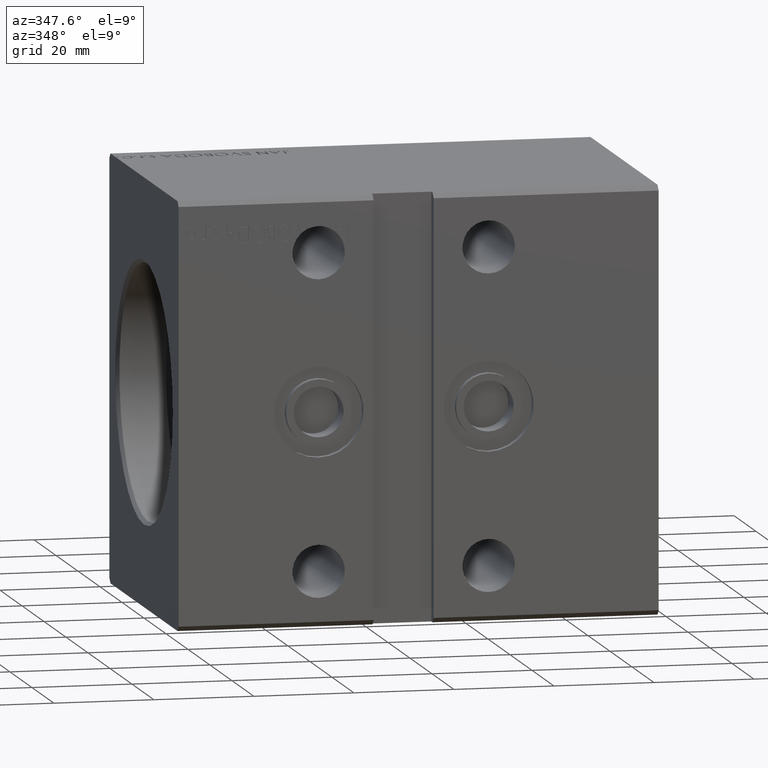
[diagram: clean part render]
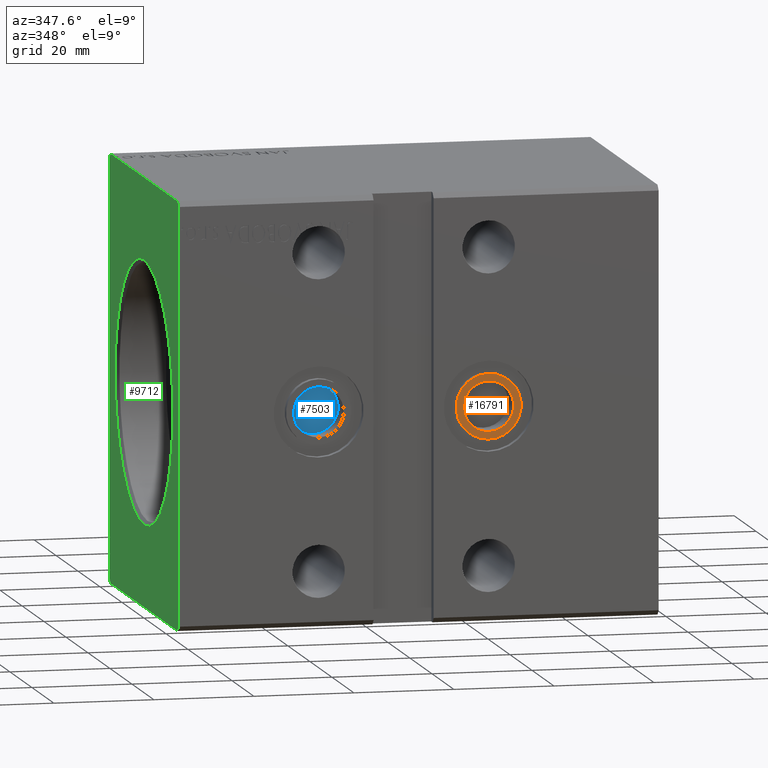
[diagram: same view with three faces highlighted in distinct colors, each labeled with its STEP entity id]
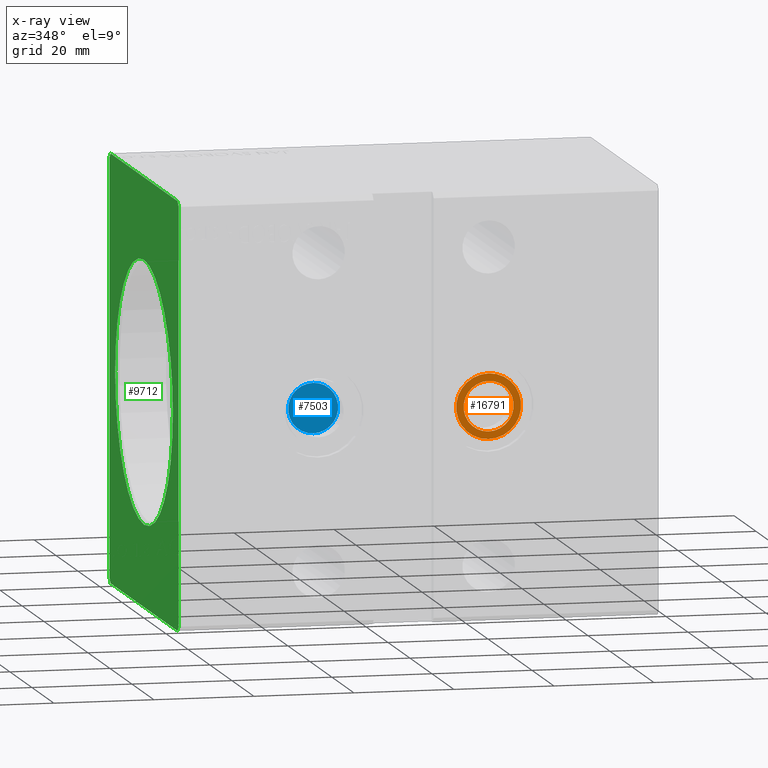
[diagram: x-ray of the same camera — body ghosted, the three highlighted faces saturated]
A machine part, auxiliary view with three faces highlighted in distinct colors.
The next image is the same camera in x-ray (body ghosted, the three faces saturated) — at least one of them is partly hidden behind the body in this view.
Their STEP definitions:

[orange] entity #16791 — the highlighted planar face has unit normal (-0, 1, 0).
#1786 = AXIS2_PLACEMENT_3D ( 'NONE', #10950, #23480, #11155 ) ;
#2209 = FACE_OUTER_BOUND ( 'NONE', #11065, .T. ) ;
#2315 = CARTESIAN_POINT ( 'NONE',  ( 62.00000000000000711, -31.50000000000000000, -2.775094786806227030E-15 ) ) ;
#2812 = CARTESIAN_POINT ( 'NONE',  ( 96.00000000000000000, -31.50000000000000000, 41.49999999999999289 ) ) ;
#2867 = DIRECTION ( 'NONE',  ( 0.000000000000000000, -1.000000000000000000, -5.507058653894625853E-17 ) ) ;
#2989 = EDGE_CURVE ( 'NONE', #10899, #4080, #35554, .T. ) ;
#4080 = VERTEX_POINT ( 'NONE', #13755 ) ;
#7200 = CARTESIAN_POINT ( 'NONE',  ( 62.00000000000000711, -31.50000000000000000, -6.499999999999997335 ) ) ;
#8482 = EDGE_LOOP ( 'NONE', ( #21313, #29757 ) ) ;
#9621 = VERTEX_POINT ( 'NONE', #38488 ) ;
#10654 = VERTEX_POINT ( 'NONE', #7200 ) ;
#10793 = AXIS2_PLACEMENT_3D ( 'NONE', #2315, #21028, #21435 ) ;
#10899 = VERTEX_POINT ( 'NONE', #21750 ) ;
#10950 = CARTESIAN_POINT ( 'NONE',  ( 62.00000000000000711, -31.50000000000000000, -2.775094786806227030E-15 ) ) ;
#11065 = EDGE_LOOP ( 'NONE', ( #23673, #36223 ) ) ;
#11155 = DIRECTION ( 'NONE',  ( 0.000000000000000000, 0.000000000000000000, -1.000000000000000000 ) ) ;
#12232 = CIRCLE ( 'NONE', #22082, 4.999999999999997335 ) ;
#13755 = CARTESIAN_POINT ( 'NONE',  ( 62.00000000000000711, -31.50000000000000000, -5.000000000000000000 ) ) ;
#14764 = FACE_BOUND ( 'NONE', #8482, .T. ) ;
#16042 = CIRCLE ( 'NONE', #10793, 6.499999999999994671 ) ;
#16791 = ADVANCED_FACE ( 'NONE', ( #14764, #2209 ), #27910, .F. ) ;
#19147 = AXIS2_PLACEMENT_3D ( 'NONE', #24262, #2867, #28164 ) ;
#20926 = DIRECTION ( 'NONE',  ( 0.000000000000000000, -0.000000000000000000, 1.000000000000000000 ) ) ;
#21028 = DIRECTION ( 'NONE',  ( -0.000000000000000000, 1.000000000000000000, -0.000000000000000000 ) ) ;
#21313 = ORIENTED_EDGE ( 'NONE', *, *, #32090, .F. ) ;
#21435 = DIRECTION ( 'NONE',  ( 0.000000000000000000, 0.000000000000000000, -1.000000000000000000 ) ) ;
#21750 = CARTESIAN_POINT ( 'NONE',  ( 62.00000000000000711, -31.50000000000000000, 4.999999999999994671 ) ) ;
#22082 = AXIS2_PLACEMENT_3D ( 'NONE', #27485, #40024, #36122 ) ;
#23480 = DIRECTION ( 'NONE',  ( -0.000000000000000000, 1.000000000000000000, -0.000000000000000000 ) ) ;
#23673 = ORIENTED_EDGE ( 'NONE', *, *, #25347, .F. ) ;
#24262 = CARTESIAN_POINT ( 'NONE',  ( 62.00000000000000711, -31.50000000000000000, -2.775094786806226635E-15 ) ) ;
#25347 = EDGE_CURVE ( 'NONE', #10654, #9621, #16042, .T. ) ;
#25593 = AXIS2_PLACEMENT_3D ( 'NONE', #2812, #30367, #20926 ) ;
#27485 = CARTESIAN_POINT ( 'NONE',  ( 62.00000000000000711, -31.50000000000000000, -2.775094786806226635E-15 ) ) ;
#27910 = PLANE ( 'NONE',  #25593 ) ;
#28164 = DIRECTION ( 'NONE',  ( 0.000000000000000000, 0.000000000000000000, -1.000000000000000000 ) ) ;
#28690 = CIRCLE ( 'NONE', #1786, 6.499999999999994671 ) ;
#29757 = ORIENTED_EDGE ( 'NONE', *, *, #2989, .F. ) ;
#30367 = DIRECTION ( 'NONE',  ( -0.000000000000000000, 1.000000000000000000, 0.000000000000000000 ) ) ;
#32090 = EDGE_CURVE ( 'NONE', #4080, #10899, #12232, .T. ) ;
#34210 = EDGE_CURVE ( 'NONE', #9621, #10654, #28690, .T. ) ;
#35554 = CIRCLE ( 'NONE', #19147, 4.999999999999997335 ) ;
#36122 = DIRECTION ( 'NONE',  ( 0.000000000000000000, 0.000000000000000000, -1.000000000000000000 ) ) ;
#36223 = ORIENTED_EDGE ( 'NONE', *, *, #34210, .F. ) ;
#38488 = CARTESIAN_POINT ( 'NONE',  ( 62.00000000000000711, -31.50000000000000000, 6.499999999999992006 ) ) ;
#40024 = DIRECTION ( 'NONE',  ( 0.000000000000000000, -1.000000000000000000, -5.507058653894625853E-17 ) ) ;

[blue] entity #7503 — the highlighted planar face has unit normal (0, -1, -0).
#93 = FACE_OUTER_BOUND ( 'NONE', #5472, .T. ) ;
#1853 = VERTEX_POINT ( 'NONE', #25103 ) ;
#2794 = AXIS2_PLACEMENT_3D ( 'NONE', #6260, #30924, #2968 ) ;
#2840 = ORIENTED_EDGE ( 'NONE', *, *, #24711, .T. ) ;
#2968 = DIRECTION ( 'NONE',  ( 0.000000000000000000, 5.507058653894625853E-17, -1.000000000000000000 ) ) ;
#4825 = DIRECTION ( 'NONE',  ( 0.000000000000000000, 0.000000000000000000, -1.000000000000000000 ) ) ;
#4864 = AXIS2_PLACEMENT_3D ( 'NONE', #9411, #25254, #21954 ) ;
#5472 = EDGE_LOOP ( 'NONE', ( #2840, #39256 ) ) ;
#6260 = CARTESIAN_POINT ( 'NONE',  ( 28.00000000000000355, -26.50000000000000000, -6.663540971212496592E-15 ) ) ;
#7488 = CIRCLE ( 'NONE', #4864, 4.999999999999997335 ) ;
#7503 = ADVANCED_FACE ( 'NONE', ( #93 ), #18995, .T. ) ;
#8115 = DIRECTION ( 'NONE',  ( 0.000000000000000000, -1.000000000000000000, -5.507058653894625853E-17 ) ) ;
#9411 = CARTESIAN_POINT ( 'NONE',  ( 28.00000000000000355, -26.50000000000000000, -6.663540971212496592E-15 ) ) ;
#10599 = CARTESIAN_POINT ( 'NONE',  ( 28.00000000000000355, -26.50000000000000000, -6.663540971212496592E-15 ) ) ;
#16773 = AXIS2_PLACEMENT_3D ( 'NONE', #10599, #8115, #4825 ) ;
#18536 = VERTEX_POINT ( 'NONE', #38835 ) ;
#18995 = PLANE ( 'NONE',  #2794 ) ;
#20696 = CIRCLE ( 'NONE', #16773, 4.999999999999997335 ) ;
#21090 = EDGE_CURVE ( 'NONE', #18536, #1853, #20696, .T. ) ;
#21954 = DIRECTION ( 'NONE',  ( 0.000000000000000000, 0.000000000000000000, -1.000000000000000000 ) ) ;
#24711 = EDGE_CURVE ( 'NONE', #1853, #18536, #7488, .T. ) ;
#25103 = CARTESIAN_POINT ( 'NONE',  ( 28.00000000000000355, -26.50000000000000000, -5.000000000000004441 ) ) ;
#25254 = DIRECTION ( 'NONE',  ( 0.000000000000000000, -1.000000000000000000, -5.507058653894625853E-17 ) ) ;
#30924 = DIRECTION ( 'NONE',  ( 0.000000000000000000, -1.000000000000000000, -5.507058653894625853E-17 ) ) ;
#38835 = CARTESIAN_POINT ( 'NONE',  ( 28.00000000000000355, -26.50000000000000000, 4.999999999999990230 ) ) ;
#39256 = ORIENTED_EDGE ( 'NONE', *, *, #21090, .T. ) ;

[green] entity #9712 — the highlighted planar face has unit normal (1, 0, 0).
#227 = EDGE_LOOP ( 'NONE', ( #12824, #12619, #37856, #9620, #18272, #4565, #25469, #7100 ) ) ;
#623 = EDGE_CURVE ( 'NONE', #16116, #25653, #21680, .T. ) ;
#689 = CARTESIAN_POINT ( 'NONE',  ( 0.000000000000000000, 30.50000000000001776, -42.50000000000000711 ) ) ;
#1240 = EDGE_CURVE ( 'NONE', #25265, #19709, #35668, .T. ) ;
#1816 = VECTOR ( 'NONE', #2226, 1000.000000000000114 ) ;
#1964 = DIRECTION ( 'NONE',  ( 0.000000000000000000, 0.000000000000000000, -1.000000000000000000 ) ) ;
#2226 = DIRECTION ( 'NONE',  ( 0.000000000000000000, 0.7071067811865451302, -0.7071067811865500152 ) ) ;
#2682 = DIRECTION ( 'NONE',  ( 1.000000000000000000, 0.000000000000000000, 0.000000000000000000 ) ) ;
#3971 = DIRECTION ( 'NONE',  ( 0.000000000000000000, 0.7071067811865462405, 0.7071067811865489050 ) ) ;
#4167 = VERTEX_POINT ( 'NONE', #36944 ) ;
#4375 = CARTESIAN_POINT ( 'NONE',  ( 0.000000000000000000, -31.50000000000000000, -41.50000000000000711 ) ) ;
#4565 = ORIENTED_EDGE ( 'NONE', *, *, #31997, .F. ) ;
#4974 = CARTESIAN_POINT ( 'NONE',  ( 0.000000000000000000, 3.208574613766063722E-15, -26.19999999999998863 ) ) ;
#5453 = CARTESIAN_POINT ( 'NONE',  ( 0.000000000000000000, -30.50000000000000355, 42.49999999999999289 ) ) ;
#5567 = EDGE_CURVE ( 'NONE', #12912, #34201, #7394, .T. ) ;
#5568 = CARTESIAN_POINT ( 'NONE',  ( 0.000000000000000000, 0.000000000000000000, 0.000000000000000000 ) ) ;
#7063 = LINE ( 'NONE', #689, #23410 ) ;
#7100 = ORIENTED_EDGE ( 'NONE', *, *, #623, .F. ) ;
#7101 = CARTESIAN_POINT ( 'NONE',  ( 0.000000000000000000, -31.50000000000000000, 41.49999999999999289 ) ) ;
#7394 = CIRCLE ( 'NONE', #9989, 26.19999999999998863 ) ;
#7519 = DIRECTION ( 'NONE',  ( 0.000000000000000000, 0.000000000000000000, 1.000000000000000000 ) ) ;
#7601 = LINE ( 'NONE', #30384, #1816 ) ;
#7839 = VECTOR ( 'NONE', #7519, 1000.000000000000000 ) ;
#7920 = DIRECTION ( 'NONE',  ( 0.000000000000000000, 1.000000000000000000, 0.000000000000000000 ) ) ;
#8713 = LINE ( 'NONE', #21268, #28085 ) ;
#9620 = ORIENTED_EDGE ( 'NONE', *, *, #23320, .F. ) ;
#9638 = EDGE_CURVE ( 'NONE', #19709, #16116, #29630, .T. ) ;
#9712 = ADVANCED_FACE ( 'NONE', ( #24277, #30439 ), #11547, .F. ) ;
#9978 = CARTESIAN_POINT ( 'NONE',  ( 0.000000000000000000, 31.50000000000001421, -41.50000000000000711 ) ) ;
#9989 = AXIS2_PLACEMENT_3D ( 'NONE', #39904, #39700, #37220 ) ;
#10604 = ORIENTED_EDGE ( 'NONE', *, *, #14418, .T. ) ;
#11416 = LINE ( 'NONE', #36077, #40067 ) ;
#11547 = PLANE ( 'NONE',  #25883 ) ;
#12619 = ORIENTED_EDGE ( 'NONE', *, *, #1240, .F. ) ;
#12658 = VERTEX_POINT ( 'NONE', #7101 ) ;
#12824 = ORIENTED_EDGE ( 'NONE', *, *, #9638, .F. ) ;
#12852 = CARTESIAN_POINT ( 'NONE',  ( 0.000000000000000000, 30.50000000000001421, 42.49999999999999289 ) ) ;
#12912 = VERTEX_POINT ( 'NONE', #4974 ) ;
#13537 = CARTESIAN_POINT ( 'NONE',  ( 0.000000000000000000, -31.50000000000000000, 41.49999999999999289 ) ) ;
#13822 = DIRECTION ( 'NONE',  ( 0.000000000000000000, -0.7071067811865474617, 0.7071067811865474617 ) ) ;
#14418 = EDGE_CURVE ( 'NONE', #34201, #12912, #23223, .T. ) ;
#14849 = VECTOR ( 'NONE', #28949, 1000.000000000000000 ) ;
#15601 = ORIENTED_EDGE ( 'NONE', *, *, #5567, .T. ) ;
#16116 = VERTEX_POINT ( 'NONE', #12852 ) ;
#18272 = ORIENTED_EDGE ( 'NONE', *, *, #39762, .F. ) ;
#19709 = VERTEX_POINT ( 'NONE', #30332 ) ;
#20300 = VECTOR ( 'NONE', #34217, 1000.000000000000000 ) ;
#20502 = DIRECTION ( 'NONE',  ( 0.000000000000000000, -0.7071067811865462405, -0.7071067811865489050 ) ) ;
#20999 = CARTESIAN_POINT ( 'NONE',  ( 0.000000000000000000, -30.50000000000000711, -42.50000000000000711 ) ) ;
#21267 = VECTOR ( 'NONE', #13822, 1000.000000000000114 ) ;
#21268 = CARTESIAN_POINT ( 'NONE',  ( 0.000000000000000000, -30.50000000000000355, 42.49999999999999289 ) ) ;
#21680 = LINE ( 'NONE', #24777, #20300 ) ;
#23223 = CIRCLE ( 'NONE', #27159, 26.19999999999998863 ) ;
#23320 = EDGE_CURVE ( 'NONE', #30765, #4167, #11416, .T. ) ;
#23410 = VECTOR ( 'NONE', #3971, 999.9999999999998863 ) ;
#24277 = FACE_BOUND ( 'NONE', #34340, .T. ) ;
#24777 = CARTESIAN_POINT ( 'NONE',  ( 0.000000000000000000, 30.50000000000001421, 42.49999999999999289 ) ) ;
#25265 = VERTEX_POINT ( 'NONE', #26595 ) ;
#25469 = ORIENTED_EDGE ( 'NONE', *, *, #35984, .F. ) ;
#25653 = VERTEX_POINT ( 'NONE', #5453 ) ;
#25883 = AXIS2_PLACEMENT_3D ( 'NONE', #5568, #2682, #37019 ) ;
#26595 = CARTESIAN_POINT ( 'NONE',  ( 0.000000000000000000, 31.50000000000001421, -41.50000000000000711 ) ) ;
#27159 = AXIS2_PLACEMENT_3D ( 'NONE', #40398, #33817, #1964 ) ;
#28085 = VECTOR ( 'NONE', #20502, 999.9999999999998863 ) ;
#28949 = DIRECTION ( 'NONE',  ( 0.000000000000000000, 0.000000000000000000, -1.000000000000000000 ) ) ;
#29030 = CARTESIAN_POINT ( 'NONE',  ( 0.000000000000000000, 31.50000000000001421, 41.49999999999999289 ) ) ;
#29630 = LINE ( 'NONE', #29030, #21267 ) ;
#30057 = CARTESIAN_POINT ( 'NONE',  ( 0.000000000000000000, 0.000000000000000000, 26.19999999999998863 ) ) ;
#30332 = CARTESIAN_POINT ( 'NONE',  ( 0.000000000000000000, 31.50000000000001421, 41.49999999999999289 ) ) ;
#30384 = CARTESIAN_POINT ( 'NONE',  ( 0.000000000000000000, -31.50000000000000000, -41.50000000000000711 ) ) ;
#30439 = FACE_OUTER_BOUND ( 'NONE', #227, .T. ) ;
#30765 = VERTEX_POINT ( 'NONE', #20999 ) ;
#31997 = EDGE_CURVE ( 'NONE', #12658, #33601, #32033, .T. ) ;
#32033 = LINE ( 'NONE', #13537, #14849 ) ;
#32505 = EDGE_CURVE ( 'NONE', #4167, #25265, #7063, .T. ) ;
#33601 = VERTEX_POINT ( 'NONE', #4375 ) ;
#33817 = DIRECTION ( 'NONE',  ( 1.000000000000000000, 0.000000000000000000, 0.000000000000000000 ) ) ;
#34201 = VERTEX_POINT ( 'NONE', #30057 ) ;
#34217 = DIRECTION ( 'NONE',  ( 0.000000000000000000, -1.000000000000000000, 0.000000000000000000 ) ) ;
#34340 = EDGE_LOOP ( 'NONE', ( #10604, #15601 ) ) ;
#35668 = LINE ( 'NONE', #9978, #7839 ) ;
#35984 = EDGE_CURVE ( 'NONE', #25653, #12658, #8713, .T. ) ;
#36077 = CARTESIAN_POINT ( 'NONE',  ( 0.000000000000000000, -30.50000000000000711, -42.50000000000000711 ) ) ;
#36944 = CARTESIAN_POINT ( 'NONE',  ( 0.000000000000000000, 30.50000000000001776, -42.50000000000000711 ) ) ;
#37019 = DIRECTION ( 'NONE',  ( 0.000000000000000000, 0.000000000000000000, -1.000000000000000000 ) ) ;
#37220 = DIRECTION ( 'NONE',  ( 0.000000000000000000, 0.000000000000000000, -1.000000000000000000 ) ) ;
#37856 = ORIENTED_EDGE ( 'NONE', *, *, #32505, .F. ) ;
#39700 = DIRECTION ( 'NONE',  ( 1.000000000000000000, 0.000000000000000000, 0.000000000000000000 ) ) ;
#39762 = EDGE_CURVE ( 'NONE', #33601, #30765, #7601, .T. ) ;
#39904 = CARTESIAN_POINT ( 'NONE',  ( 0.000000000000000000, 0.000000000000000000, 0.000000000000000000 ) ) ;
#40067 = VECTOR ( 'NONE', #7920, 1000.000000000000000 ) ;
#40398 = CARTESIAN_POINT ( 'NONE',  ( 0.000000000000000000, 0.000000000000000000, 0.000000000000000000 ) ) ;